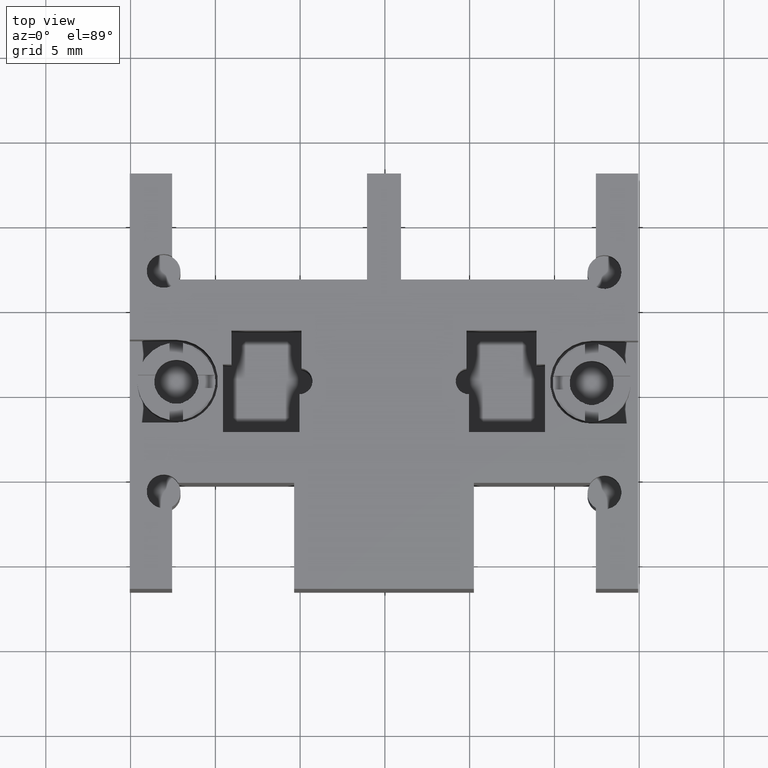
[diagram: clean part render]
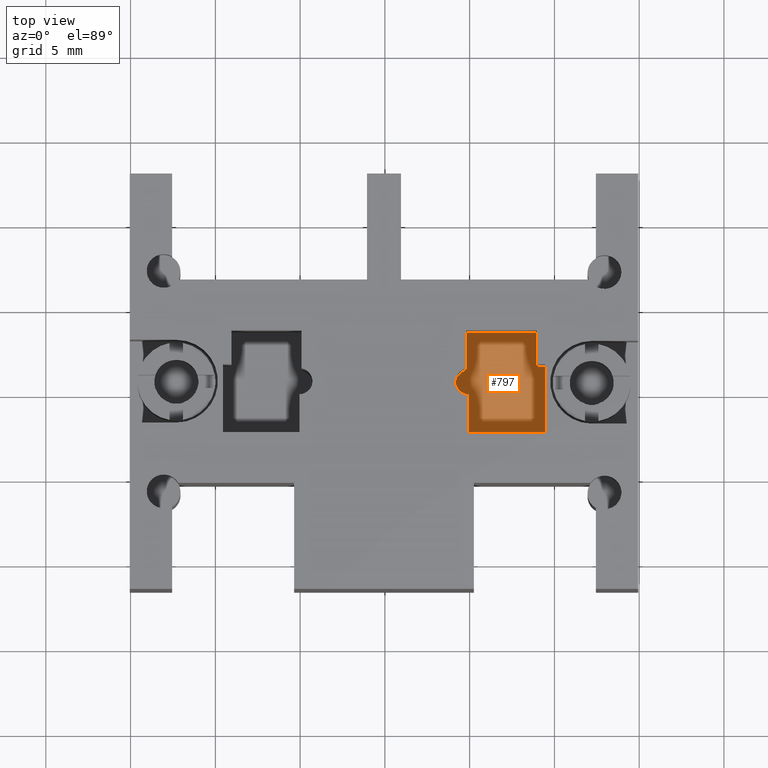
[diagram: same view with one face highlighted and labeled with its STEP entity id]
A machine part, top view. The second image highlights one B-rep face of the part: STEP entity #797.
In plain terms, the highlighted face is a freeform B-spline surface patch.
Its self-contained STEP definition (entity closure, byte-faithful):
#516=CARTESIAN_POINT('',(-1.052022867292330,6.614643525666464,6.000000000000002));
#517=VERTEX_POINT('',#516);
#518=CARTESIAN_POINT('',(-0.552022867292330,6.614643525666464,6.000000000000002));
#519=VERTEX_POINT('',#518);
#520=CARTESIAN_POINT('',(-1.052022867292330,6.614643525666464,6.000000000000002));
#521=DIRECTION('',(1.0,0.0,0.0));
#522=VECTOR('',#521,0.500000000000000);
#523=LINE('',#520,#522);
#524=EDGE_CURVE('',#517,#519,#523,.T.);
#556=CARTESIAN_POINT('',(-0.552022867292330,2.614643525666464,6.000000000000002));
#557=VERTEX_POINT('',#556);
#558=CARTESIAN_POINT('',(-0.552022867292330,6.614643525666464,6.000000000000002));
#559=DIRECTION('',(0.0,-1.0,0.0));
#560=VECTOR('',#559,4.0);
#561=LINE('',#558,#560);
#562=EDGE_CURVE('',#519,#557,#561,.T.);
#587=CARTESIAN_POINT('',(-5.052022867292330,2.614643525666465,6.000000000000002));
#588=VERTEX_POINT('',#587);
#589=CARTESIAN_POINT('',(-0.552022867292330,2.614643525666464,6.000000000000002));
#590=DIRECTION('',(-1.0,0.0,0.0));
#591=VECTOR('',#590,4.500000000000000);
#592=LINE('',#589,#591);
#593=EDGE_CURVE('',#557,#588,#592,.T.);
#618=CARTESIAN_POINT('',(-5.052022867292331,4.838009758098289,6.000000000000002));
#619=VERTEX_POINT('',#618);
#620=CARTESIAN_POINT('',(-5.052022867292330,2.614643525666465,6.000000000000002));
#621=DIRECTION('',(0.0,1.0,0.0));
#622=VECTOR('',#621,2.223366232431824);
#623=LINE('',#620,#622);
#624=EDGE_CURVE('',#588,#619,#623,.T.);
#670=CARTESIAN_POINT('',(-5.179350140141493,6.380768694627736,6.000000000000002));
#671=VERTEX_POINT('',#670);
#672=CARTESIAN_POINT('',(-5.052022867292330,5.614643525666465,6.0));
#673=DIRECTION('',(0.0,0.0,-1.0));
#674=DIRECTION('',(0.0,-1.0,0.0));
#675=AXIS2_PLACEMENT_3D('',#672,#673,#674);
#676=CIRCLE('',#675,0.776633767568176);
#677=EDGE_CURVE('',#619,#671,#676,.T.);
#703=CARTESIAN_POINT('',(-5.179350140141493,8.614643525666466,6.000000000000002));
#704=VERTEX_POINT('',#703);
#705=CARTESIAN_POINT('',(-5.179350140141493,6.380768694627736,6.000000000000002));
#706=DIRECTION('',(0.0,1.0,0.0));
#707=VECTOR('',#706,2.233874831038730);
#708=LINE('',#705,#707);
#709=EDGE_CURVE('',#671,#704,#708,.T.);
#734=CARTESIAN_POINT('',(-1.052022867292330,8.614643525666464,6.000000000000002));
#735=VERTEX_POINT('',#734);
#736=CARTESIAN_POINT('',(-5.179350140141493,8.614643525666466,6.000000000000002));
#737=DIRECTION('',(1.0,0.0,0.0));
#738=VECTOR('',#737,4.127327272849162);
#739=LINE('',#736,#738);
#740=EDGE_CURVE('',#704,#735,#739,.T.);
#765=CARTESIAN_POINT('',(-1.052022867292330,8.614643525666464,6.000000000000002));
#766=DIRECTION('',(0.0,-1.0,0.0));
#767=VECTOR('',#766,2.0);
#768=LINE('',#765,#767);
#769=EDGE_CURVE('',#735,#517,#768,.T.);
#782=CARTESIAN_POINT('',(-0.552022867292330,8.614643525666468,6.000000000000002));
#783=CARTESIAN_POINT('',(-5.828656634860508,8.614643525666466,6.000000000000002));
#784=CARTESIAN_POINT('',(-0.552022867292328,2.614643525666464,6.000000000000002));
#785=CARTESIAN_POINT('',(-5.828656634860506,2.614643525666462,6.000000000000002));
#786=B_SPLINE_SURFACE_WITH_KNOTS('',1,1,((#782,#784),(#783,#785)),.UNSPECIFIED.,.F.,.F.,.U.,(2,2),(2,2),(0.0,5.276633767568178),(0.0,6.000000000000004),.UNSPECIFIED.);
#787=ORIENTED_EDGE('',*,*,#524,.F.);
#788=ORIENTED_EDGE('',*,*,#769,.F.);
#789=ORIENTED_EDGE('',*,*,#740,.F.);
#790=ORIENTED_EDGE('',*,*,#709,.F.);
#791=ORIENTED_EDGE('',*,*,#677,.F.);
#792=ORIENTED_EDGE('',*,*,#624,.F.);
#793=ORIENTED_EDGE('',*,*,#593,.F.);
#794=ORIENTED_EDGE('',*,*,#562,.F.);
#795=EDGE_LOOP('',(#787,#788,#789,#790,#791,#792,#793,#794));
#796=FACE_OUTER_BOUND('',#795,.T.);
#797=ADVANCED_FACE('',(#796),#786,.T.);